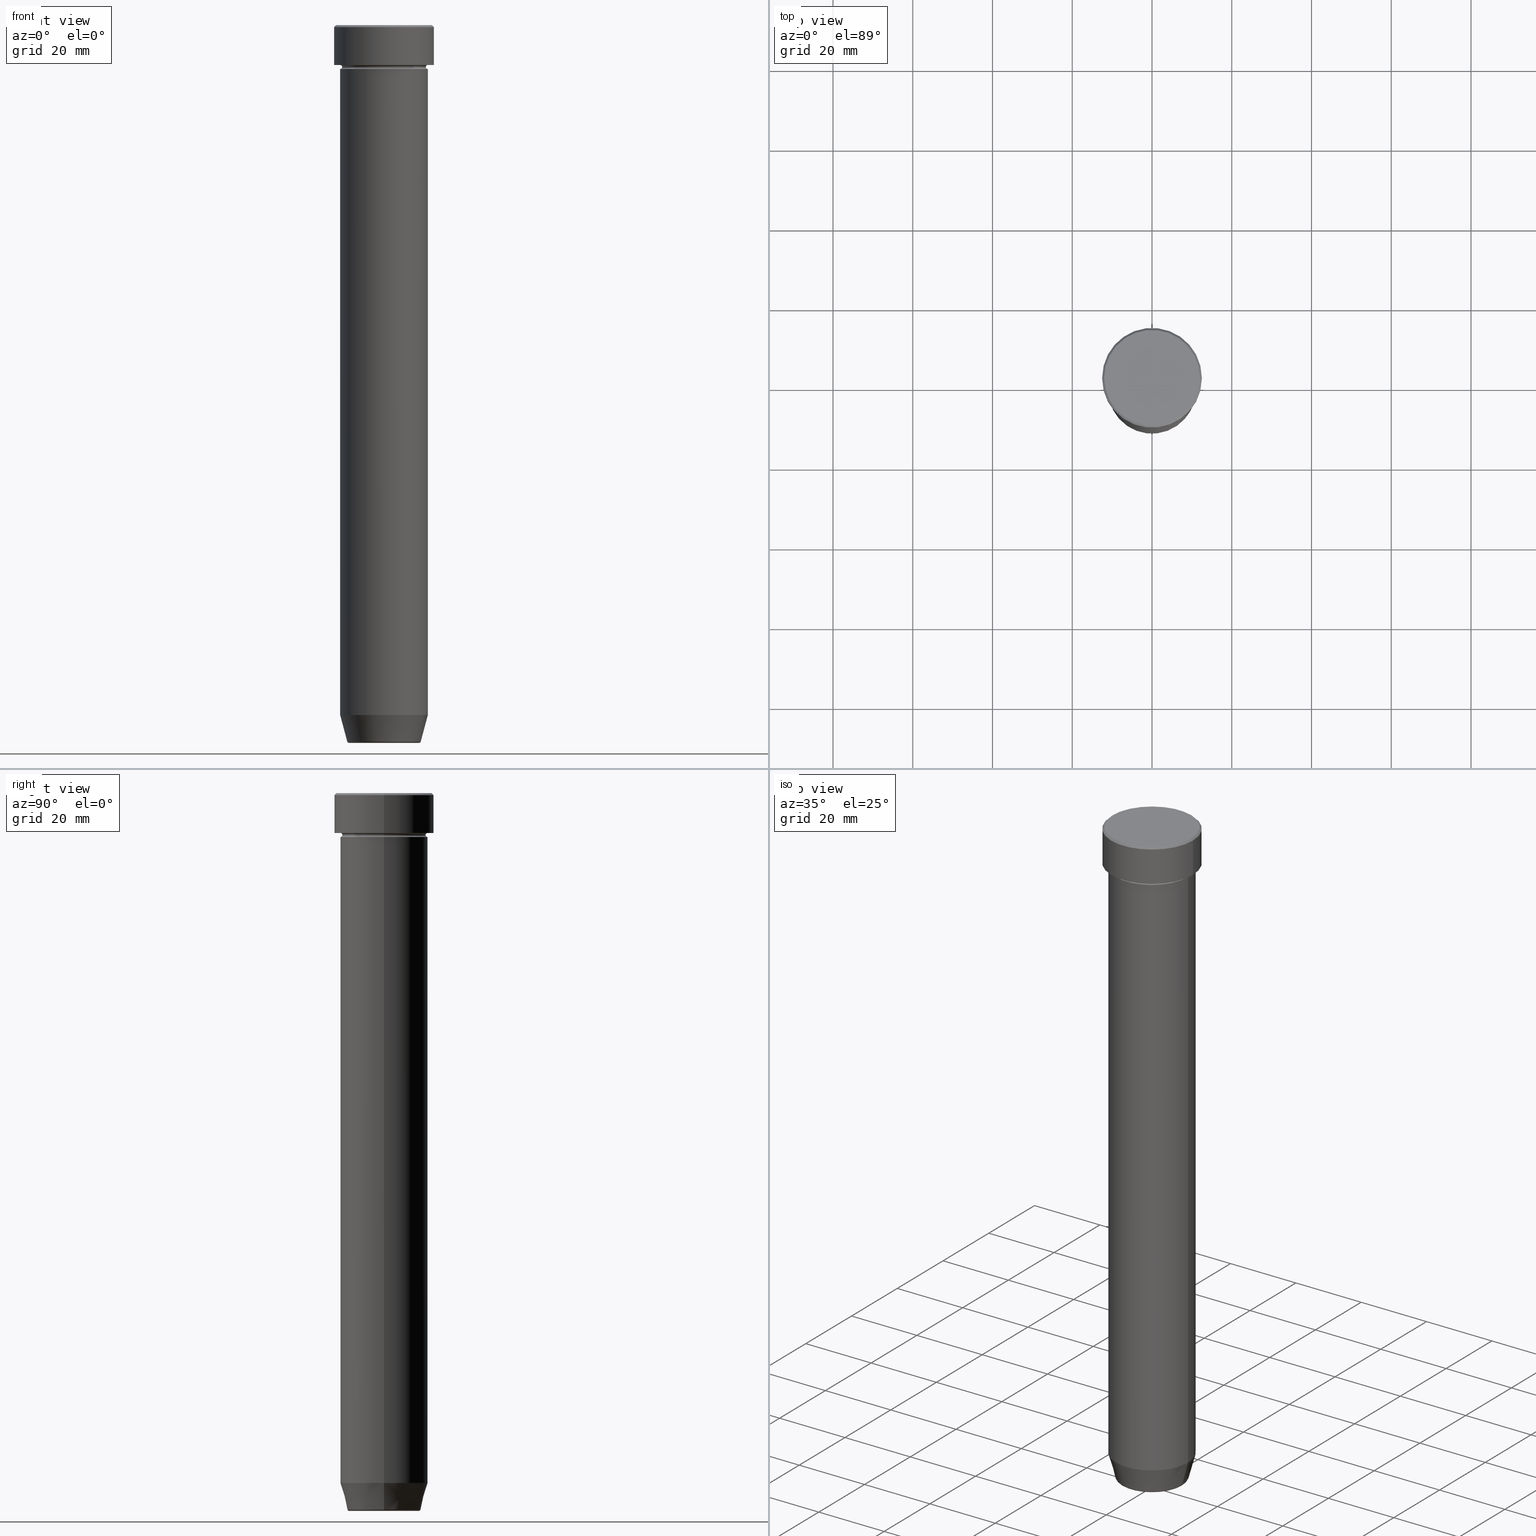
[diagram: canonical four-view strip — front | top / right | iso, engineering-drawing reading convention]
A machine part, canonical four-view strip (front | top / right | iso — engineering-drawing reading convention). The complete STEP part file that produces these views, byte-faithful:
ISO-10303-21;
HEADER;
FILE_DESCRIPTION (( 'STEP AP203' ),
    '1' );
FILE_NAME ('b06f.STEP',
    '2024-01-02T19:23:08',
    ( '' ),
    ( '' ),
    'SwSTEP 2.0',
    'SolidWorks 2019',
    '' );
FILE_SCHEMA (( 'CONFIG_CONTROL_DESIGN' ));
ENDSEC;

DATA;
#1 = PERSON_AND_ORGANIZATION ( #321, #514 ) ;
#2 = DIRECTION ( 'NONE',  ( 0.000000000000000000, 0.000000000000000000, -1.000000000000000000 ) ) ;
#3 = FACE_OUTER_BOUND ( 'NONE', #134, .T. ) ;
#4 = CIRCLE ( 'NONE', #425, 12.00000000000000355 ) ;
#5 = ADVANCED_FACE ( 'NONE', ( #315 ), #493, .F. ) ;
#6 = DATE_AND_TIME ( #129, #111 ) ;
#7 = CARTESIAN_POINT ( 'NONE',  ( 0.000000000000000000, 0.000000000000000000, -180.0000000000000000 ) ) ;
#8 = CARTESIAN_POINT ( 'NONE',  ( 0.000000000000000000, 0.000000000000000000, 0.000000000000000000 ) ) ;
#9 = VERTEX_POINT ( 'NONE', #85 ) ;
#10 = CARTESIAN_POINT ( 'NONE',  ( -10.49999999999999822, 1.316495309083404420E-15, -10.49999999999999822 ) ) ;
#11 = DATE_AND_TIME ( #136, #584 ) ;
#12 = ORIENTED_EDGE ( 'NONE', *, *, #58, .F. ) ;
#13 = AXIS2_PLACEMENT_3D ( 'NONE', #404, #166, #119 ) ;
#14 = DIRECTION ( 'NONE',  ( -0.000000000000000000, -0.000000000000000000, 1.000000000000000000 ) ) ;
#15 = CARTESIAN_POINT ( 'NONE',  ( 8.740692158992656502, 0.000000000000000000, -179.5000000000000000 ) ) ;
#16 = FACE_OUTER_BOUND ( 'NONE', #503, .T. ) ;
#17 = ORIENTED_EDGE ( 'NONE', *, *, #35, .T. ) ;
#18 = LINE ( 'NONE', #558, #231 ) ;
#19 = EDGE_CURVE ( 'NONE', #360, #376, #563, .T. ) ;
#20 = LINE ( 'NONE', #515, #250 ) ;
#21 = DIRECTION ( 'NONE',  ( 0.000000000000000000, 0.000000000000000000, -1.000000000000000000 ) ) ;
#22 = ORIENTED_EDGE ( 'NONE', *, *, #367, .T. ) ;
#23 = EDGE_CURVE ( 'NONE', #225, #527, #88, .T. ) ;
#24 = DIRECTION ( 'NONE',  ( -0.000000000000000000, -0.000000000000000000, 1.000000000000000000 ) ) ;
#25 = CIRCLE ( 'NONE', #389, 0.5000000000000004441 ) ;
#26 = CARTESIAN_POINT ( 'NONE',  ( 0.000000000000000000, 0.000000000000000000, 0.000000000000000000 ) ) ;
#27 = VERTEX_POINT ( 'NONE', #465 ) ;
#28 = PLANE ( 'NONE',  #505 ) ;
#29 = PERSON_AND_ORGANIZATION_ROLE ( 'design_owner' ) ;
#30 = ORIENTED_EDGE ( 'NONE', *, *, #280, .F. ) ;
#31 = AXIS2_PLACEMENT_3D ( 'NONE', #184, #284, #427 ) ;
#32 = ORIENTED_EDGE ( 'NONE', *, *, #437, .F. ) ;
#33 = ORIENTED_EDGE ( 'NONE', *, *, #525, .F. ) ;
#34 = AXIS2_PLACEMENT_3D ( 'NONE', #314, #477, #294 ) ;
#35 = EDGE_CURVE ( 'NONE', #559, #258, #102, .T. ) ;
#36 = CARTESIAN_POINT ( 'NONE',  ( 11.00000000000000000, 0.000000000000000000, -173.0000000000000000 ) ) ;
#37 = DIRECTION ( 'NONE',  ( -0.000000000000000000, -0.000000000000000000, 1.000000000000000000 ) ) ;
#38 = CARTESIAN_POINT ( 'NONE',  ( 0.000000000000000000, 0.000000000000000000, 0.000000000000000000 ) ) ;
#39 = AXIS2_PLACEMENT_3D ( 'NONE', #461, #107, #340 ) ;
#40 = CIRCLE ( 'NONE', #13, 8.740692158992656502 ) ;
#41 = ADVANCED_FACE ( 'NONE', ( #422 ), #28, .T. ) ;
#42 = DIRECTION ( 'NONE',  ( 0.7071067811865462405, 8.659560562354918067E-17, -0.7071067811865489050 ) ) ;
#43 = DIRECTION ( 'NONE',  ( 1.000000000000000000, 0.000000000000000000, 0.000000000000000000 ) ) ;
#44 = FACE_OUTER_BOUND ( 'NONE', #89, .T. ) ;
#45 = CARTESIAN_POINT ( 'NONE',  ( 0.000000000000000000, 12.50000000000000000, -10.00000000000000000 ) ) ;
#46 = ORIENTED_EDGE ( 'NONE', *, *, #486, .F. ) ;
#47 = DIRECTION ( 'NONE',  ( 1.000000000000000000, 0.000000000000000000, 0.000000000000000000 ) ) ;
#48 = DIRECTION ( 'NONE',  ( 1.000000000000000000, 0.000000000000000000, 0.000000000000000000 ) ) ;
#49 = EDGE_CURVE ( 'NONE', #93, #286, #20, .T. ) ;
#50 = VECTOR ( 'NONE', #98, 1000.000000000000000 ) ;
#51 = CALENDAR_DATE ( 2024, 2, 1 ) ;
#52 = EDGE_LOOP ( 'NONE', ( #32, #60 ) ) ;
#53 = DIRECTION ( 'NONE',  ( 0.000000000000000000, -0.000000000000000000, 1.000000000000000000 ) ) ;
#54 = AXIS2_PLACEMENT_3D ( 'NONE', #551, #53, #230 ) ;
#55 = CARTESIAN_POINT ( 'NONE',  ( 0.000000000000000000, 0.000000000000000000, -0.4999999999999988343 ) ) ;
#56 = CARTESIAN_POINT ( 'NONE',  ( 11.00000000000000000, 0.000000000000000000, 0.000000000000000000 ) ) ;
#57 = EDGE_LOOP ( 'NONE', ( #532, #433, #145, #466 ) ) ;
#58 = EDGE_CURVE ( 'NONE', #282, #9, #588, .T. ) ;
#59 = DIRECTION ( 'NONE',  ( -0.7071067811865462405, 0.000000000000000000, -0.7071067811865489050 ) ) ;
#60 = ORIENTED_EDGE ( 'NONE', *, *, #158, .F. ) ;
#61 = DIRECTION ( 'NONE',  ( 1.000000000000000000, 0.000000000000000000, 0.000000000000000000 ) ) ;
#62 = VERTEX_POINT ( 'NONE', #159 ) ;
#63 = PRODUCT_DEFINITION_FORMATION_WITH_SPECIFIED_SOURCE ( 'LIBOVOLN�', '', #421, .NOT_KNOWN. ) ;
#64 = CARTESIAN_POINT ( 'NONE',  ( 0.000000000000000000, 0.000000000000000000, -11.00000000000000000 ) ) ;
#65 = EDGE_CURVE ( 'NONE', #27, #235, #236, .T. ) ;
#66 = AXIS2_PLACEMENT_3D ( 'NONE', #379, #153, #252 ) ;
#67 = FACE_OUTER_BOUND ( 'NONE', #386, .T. ) ;
#68 = FACE_OUTER_BOUND ( 'NONE', #337, .T. ) ;
#69 = DIRECTION ( 'NONE',  ( 1.000000000000000000, 0.000000000000000000, 0.000000000000000000 ) ) ;
#70 = ORIENTED_EDGE ( 'NONE', *, *, #356, .F. ) ;
#71 = VECTOR ( 'NONE', #547, 1000.000000000000000 ) ;
#72 = CC_DESIGN_APPROVAL ( #175, ( #585 ) ) ;
#73 = ORIENTED_EDGE ( 'NONE', *, *, #124, .F. ) ;
#74 = AXIS2_PLACEMENT_3D ( 'NONE', #38, #312, #176 ) ;
#75 = TOROIDAL_SURFACE ( 'NONE', #232, 11.00000000000000000, 0.5000000000000000000 ) ;
#76 = CALENDAR_DATE ( 2024, 2, 1 ) ;
#77 = DIRECTION ( 'NONE',  ( -0.000000000000000000, -0.000000000000000000, 1.000000000000000000 ) ) ;
#78 = AXIS2_PLACEMENT_3D ( 'NONE', #449, #289, #47 ) ;
#79 = ADVANCED_FACE ( 'NONE', ( #16 ), #590, .F. ) ;
#80 = EDGE_LOOP ( 'NONE', ( #516, #531 ) ) ;
#81 = DIRECTION ( 'NONE',  ( -1.000000000000000000, 0.000000000000000000, 0.000000000000000000 ) ) ;
#82 = DIRECTION ( 'NONE',  ( 0.000000000000000000, 0.000000000000000000, -1.000000000000000000 ) ) ;
#83 = DIRECTION ( 'NONE',  ( -1.000000000000000000, 1.224646799147353454E-16, 0.000000000000000000 ) ) ;
#84 = CARTESIAN_POINT ( 'NONE',  ( 0.000000000000000000, 0.000000000000000000, -180.0000000000000000 ) ) ;
#85 = CARTESIAN_POINT ( 'NONE',  ( 11.00000000000000000, 1.347111479062088405E-15, -10.00000000000000000 ) ) ;
#86 = CARTESIAN_POINT ( 'NONE',  ( -11.00000000000000000, 0.000000000000000000, -10.00000000000000000 ) ) ;
#87 = APPROVAL_PERSON_ORGANIZATION ( #215, #456, #174 ) ;
#88 = CIRCLE ( 'NONE', #78, 10.49999999999999822 ) ;
#89 = EDGE_LOOP ( 'NONE', ( #332, #335, #70, #106 ) ) ;
#90 = CARTESIAN_POINT ( 'NONE',  ( 0.000000000000000000, 0.000000000000000000, -0.4999999999999988343 ) ) ;
#91 = CYLINDRICAL_SURFACE ( 'NONE', #535, 12.50000000000000000 ) ;
#92 = CONICAL_SURFACE ( 'NONE', #553, 9.124355652982133691, 0.2617993877991500740 ) ;
#93 = VERTEX_POINT ( 'NONE', #113 ) ;
#94 = DIRECTION ( 'NONE',  ( 1.000000000000000000, 0.000000000000000000, 0.000000000000000000 ) ) ;
#95 = FACE_OUTER_BOUND ( 'NONE', #549, .T. ) ;
#96 = DIRECTION ( 'NONE',  ( -0.000000000000000000, -0.000000000000000000, 1.000000000000000000 ) ) ;
#97 = ORIENTED_EDGE ( 'NONE', *, *, #280, .T. ) ;
#98 = DIRECTION ( 'NONE',  ( -0.2588190451025213501, 3.169619151431772337E-17, 0.9659258262890680902 ) ) ;
#99 = ADVANCED_FACE ( 'NONE', ( #68 ), #242, .T. ) ;
#100 = DIRECTION ( 'NONE',  ( 1.000000000000000000, 0.000000000000000000, 0.000000000000000000 ) ) ;
#101 = ORIENTED_EDGE ( 'NONE', *, *, #221, .F. ) ;
#102 = CIRCLE ( 'NONE', #429, 8.740692158992656502 ) ;
#103 = DIRECTION ( 'NONE',  ( -0.000000000000000000, -0.000000000000000000, 1.000000000000000000 ) ) ;
#104 = CARTESIAN_POINT ( 'NONE',  ( 0.000000000000000000, 0.000000000000000000, -27.00000000000000000 ) ) ;
#105 = CC_DESIGN_PERSON_AND_ORGANIZATION_ASSIGNMENT ( #599, #550, ( #63 ) ) ;
#106 = ORIENTED_EDGE ( 'NONE', *, *, #398, .F. ) ;
#107 = DIRECTION ( 'NONE',  ( -1.224646799147353207E-16, 1.000000000000000000, 0.000000000000000000 ) ) ;
#108 = CIRCLE ( 'NONE', #183, 10.49999999999999822 ) ;
#109 = DIRECTION ( 'NONE',  ( 1.000000000000000000, 0.000000000000000000, 0.000000000000000000 ) ) ;
#110 = EDGE_CURVE ( 'NONE', #121, #170, #133, .T. ) ;
#111 = LOCAL_TIME ( 20, 23, 8.000000000000000000, #464 ) ;
#112 = APPLICATION_CONTEXT ( 'configuration controlled 3d designs of mechanical parts and assemblies' ) ;
#113 = CARTESIAN_POINT ( 'NONE',  ( -11.00000000000000000, 1.347111479062088405E-15, -27.00000000000000000 ) ) ;
#114 = APPROVAL_DATE_TIME ( #489, #504 ) ;
#115 = PERSON_AND_ORGANIZATION ( #321, #514 ) ;
#116 = ORIENTED_EDGE ( 'NONE', *, *, #19, .F. ) ;
#117 = ADVANCED_FACE ( 'NONE', ( #269, #95 ), #326, .T. ) ;
#118 =( GEOMETRIC_REPRESENTATION_CONTEXT ( 3 ) GLOBAL_UNCERTAINTY_ASSIGNED_CONTEXT ( ( #417 ) ) GLOBAL_UNIT_ASSIGNED_CONTEXT ( ( #251, #270, #255 ) ) REPRESENTATION_CONTEXT ( 'NONE', 'WORKASPACE' ) );
#119 = DIRECTION ( 'NONE',  ( 1.000000000000000000, 0.000000000000000000, 0.000000000000000000 ) ) ;
#120 = ORIENTED_EDGE ( 'NONE', *, *, #367, .F. ) ;
#121 = VERTEX_POINT ( 'NONE', #366 ) ;
#122 = CARTESIAN_POINT ( 'NONE',  ( 0.000000000000000000, 0.000000000000000000, -27.00000000000000000 ) ) ;
#123 = CALENDAR_DATE ( 2024, 2, 1 ) ;
#124 = EDGE_CURVE ( 'NONE', #376, #582, #470, .T. ) ;
#125 = CARTESIAN_POINT ( 'NONE',  ( -11.00000000000000000, 1.347111479062088405E-15, -10.49999999999999822 ) ) ;
#126 = MECHANICAL_CONTEXT ( 'NONE', #529, 'mechanical' ) ;
#127 = CARTESIAN_POINT ( 'NONE',  ( -11.00000000000000000, 1.347111479062088405E-15, -11.00000000000000000 ) ) ;
#128 = CC_DESIGN_DATE_AND_TIME_ASSIGNMENT ( #483, #442, ( #362 ) ) ;
#129 = CALENDAR_DATE ( 2024, 2, 1 ) ;
#130 = LINE ( 'NONE', #501, #229 ) ;
#131 = DIRECTION ( 'NONE',  ( 1.000000000000000000, 0.000000000000000000, 0.000000000000000000 ) ) ;
#132 = VECTOR ( 'NONE', #59, 999.9999999999998863 ) ;
#133 = CIRCLE ( 'NONE', #560, 9.223655072137189492 ) ;
#134 = EDGE_LOOP ( 'NONE', ( #370, #390, #238, #593 ) ) ;
#135 = CARTESIAN_POINT ( 'NONE',  ( -12.50000000000000000, 1.530808498934191521E-15, -0.4999999999999988343 ) ) ;
#136 = CALENDAR_DATE ( 2024, 2, 1 ) ;
#137 = CC_DESIGN_SECURITY_CLASSIFICATION ( #585, ( #63 ) ) ;
#138 = EDGE_CURVE ( 'NONE', #559, #121, #542, .T. ) ;
#139 = DIRECTION ( 'NONE',  ( -0.000000000000000000, -0.000000000000000000, 1.000000000000000000 ) ) ;
#140 = DIRECTION ( 'NONE',  ( 1.000000000000000000, 0.000000000000000000, 0.000000000000000000 ) ) ;
#141 = APPROVAL_DATE_TIME ( #276, #456 ) ;
#142 = DIRECTION ( 'NONE',  ( 1.000000000000000000, 0.000000000000000000, 0.000000000000000000 ) ) ;
#143 = AXIS2_PLACEMENT_3D ( 'NONE', #55, #455, #377 ) ;
#144 = AXIS2_PLACEMENT_3D ( 'NONE', #8, #495, #43 ) ;
#145 = ORIENTED_EDGE ( 'NONE', *, *, #398, .T. ) ;
#146 = DIRECTION ( 'NONE',  ( -0.000000000000000000, -0.000000000000000000, 1.000000000000000000 ) ) ;
#147 = EDGE_CURVE ( 'NONE', #360, #265, #485, .T. ) ;
#148 = DIRECTION ( 'NONE',  ( -0.000000000000000000, -0.000000000000000000, 1.000000000000000000 ) ) ;
#149 = EDGE_LOOP ( 'NONE', ( #523, #450, #519, #164 ) ) ;
#150 = CARTESIAN_POINT ( 'NONE',  ( 0.000000000000000000, 0.000000000000000000, -180.0000000000000000 ) ) ;
#151 = ORIENTED_EDGE ( 'NONE', *, *, #484, .T. ) ;
#152 = DIRECTION ( 'NONE',  ( -0.000000000000000000, -0.000000000000000000, 1.000000000000000000 ) ) ;
#153 = DIRECTION ( 'NONE',  ( -0.000000000000000000, -0.000000000000000000, 1.000000000000000000 ) ) ;
#154 = ORIENTED_EDGE ( 'NONE', *, *, #23, .T. ) ;
#155 = CLOSED_SHELL ( 'NONE', ( #266, #298, #536, #291, #185, #41, #248, #207, #117, #580, #79, #552, #473 ) ) ;
#156 = AXIS2_PLACEMENT_3D ( 'NONE', #524, #344, #205 ) ;
#157 = DIRECTION ( 'NONE',  ( -0.000000000000000000, -0.000000000000000000, 1.000000000000000000 ) ) ;
#158 = EDGE_CURVE ( 'NONE', #93, #432, #574, .T. ) ;
#159 = CARTESIAN_POINT ( 'NONE',  ( 12.50000000000000000, 0.000000000000000000, -0.4999999999999988343 ) ) ;
#160 = AXIS2_PLACEMENT_3D ( 'NONE', #257, #336, #100 ) ;
#161 = DIRECTION ( 'NONE',  ( 0.000000000000000000, -1.000000000000000000, 0.000000000000000000 ) ) ;
#162 = CIRCLE ( 'NONE', #308, 12.50000000000000000 ) ;
#163 = DIRECTION ( 'NONE',  ( -1.000000000000000000, 0.000000000000000000, 0.000000000000000000 ) ) ;
#164 = ORIENTED_EDGE ( 'NONE', *, *, #147, .F. ) ;
#165 = APPROVAL_ROLE ( '' ) ;
#166 = DIRECTION ( 'NONE',  ( 0.000000000000000000, 0.000000000000000000, -1.000000000000000000 ) ) ;
#167 = APPROVAL_STATUS ( 'not_yet_approved' ) ;
#168 = EDGE_CURVE ( 'NONE', #482, #286, #397, .T. ) ;
#169 = AXIS2_PLACEMENT_3D ( 'NONE', #219, #77, #48 ) ;
#170 = VERTEX_POINT ( 'NONE', #283 ) ;
#171 = CC_DESIGN_PERSON_AND_ORGANIZATION_ASSIGNMENT ( #363, #409, ( #63 ) ) ;
#172 = VERTEX_POINT ( 'NONE', #459 ) ;
#173 = DIRECTION ( 'NONE',  ( 1.000000000000000000, 0.000000000000000000, 0.000000000000000000 ) ) ;
#174 = APPROVAL_ROLE ( '' ) ;
#175 = APPROVAL ( #447, 'NEUR�EN�' ) ;
#176 = DIRECTION ( 'NONE',  ( 1.000000000000000000, 0.000000000000000000, 0.000000000000000000 ) ) ;
#177 = PERSON_AND_ORGANIZATION_ROLE ( 'creator' ) ;
#178 = PLANE ( 'NONE',  #54 ) ;
#179 = DIRECTION ( 'NONE',  ( -0.000000000000000000, -0.000000000000000000, 1.000000000000000000 ) ) ;
#180 = DIRECTION ( 'NONE',  ( 1.000000000000000000, 0.000000000000000000, 0.000000000000000000 ) ) ;
#181 = ADVANCED_FACE ( 'NONE', ( #226 ), #220, .T. ) ;
#182 = DIRECTION ( 'NONE',  ( -1.000000000000000000, 1.224646799147353454E-16, 0.000000000000000000 ) ) ;
#183 = AXIS2_PLACEMENT_3D ( 'NONE', #441, #395, #361 ) ;
#184 = CARTESIAN_POINT ( 'NONE',  ( 0.000000000000000000, 0.000000000000000000, 0.000000000000000000 ) ) ;
#185 = ADVANCED_FACE ( 'NONE', ( #3 ), #597, .T. ) ;
#186 = CARTESIAN_POINT ( 'NONE',  ( 0.000000000000000000, 0.000000000000000000, -10.49999999999999822 ) ) ;
#187 = AXIS2_PLACEMENT_3D ( 'NONE', #423, #103, #142 ) ;
#188 = AXIS2_PLACEMENT_3D ( 'NONE', #45, #334, #320 ) ;
#189 = DIRECTION ( 'NONE',  ( 1.000000000000000000, 0.000000000000000000, 0.000000000000000000 ) ) ;
#190 = ORIENTED_EDGE ( 'NONE', *, *, #110, .T. ) ;
#191 = ORIENTED_EDGE ( 'NONE', *, *, #408, .F. ) ;
#192 = ORIENTED_EDGE ( 'NONE', *, *, #23, .F. ) ;
#193 = FACE_OUTER_BOUND ( 'NONE', #587, .T. ) ;
#194 = DIRECTION ( 'NONE',  ( -0.000000000000000000, -0.000000000000000000, 1.000000000000000000 ) ) ;
#195 = CARTESIAN_POINT ( 'NONE',  ( 0.000000000000000000, 11.00000000000000000, -27.00000000000000000 ) ) ;
#196 = VECTOR ( 'NONE', #96, 1000.000000000000000 ) ;
#197 = LINE ( 'NONE', #467, #537 ) ;
#198 = ORIENTED_EDGE ( 'NONE', *, *, #212, .T. ) ;
#199 = CARTESIAN_POINT ( 'NONE',  ( 0.000000000000000000, 0.000000000000000000, -10.00000000000000000 ) ) ;
#200 = ORIENTED_EDGE ( 'NONE', *, *, #221, .T. ) ;
#201 = AXIS2_PLACEMENT_3D ( 'NONE', #506, #277, #365 ) ;
#202 = AXIS2_PLACEMENT_3D ( 'NONE', #381, #21, #383 ) ;
#203 = CARTESIAN_POINT ( 'NONE',  ( 0.000000000000000000, 0.000000000000000000, 0.000000000000000000 ) ) ;
#204 = ORIENTED_EDGE ( 'NONE', *, *, #346, .F. ) ;
#205 = DIRECTION ( 'NONE',  ( 1.000000000000000000, 0.000000000000000000, 0.000000000000000000 ) ) ;
#206 = CARTESIAN_POINT ( 'NONE',  ( 8.740692158992656502, 0.000000000000000000, -180.0000000000000000 ) ) ;
#207 = ADVANCED_FACE ( 'NONE', ( #325 ), #91, .T. ) ;
#208 = CIRCLE ( 'NONE', #305, 11.00000000000000000 ) ;
#209 = AXIS2_PLACEMENT_3D ( 'NONE', #104, #194, #293 ) ;
#210 = CC_DESIGN_DATE_AND_TIME_ASSIGNMENT ( #6, #318, ( #585 ) ) ;
#211 = EDGE_LOOP ( 'NONE', ( #97, #375, #12, #101 ) ) ;
#212 = EDGE_CURVE ( 'NONE', #258, #559, #40, .T. ) ;
#213 = DIRECTION ( 'NONE',  ( 1.000000000000000000, 0.000000000000000000, 0.000000000000000000 ) ) ;
#214 = CC_DESIGN_PERSON_AND_ORGANIZATION_ASSIGNMENT ( #115, #177, ( #362 ) ) ;
#215 = PERSON_AND_ORGANIZATION ( #321, #514 ) ;
#216 = AXIS2_PLACEMENT_3D ( 'NONE', #292, #161, #279 ) ;
#217 = DIRECTION ( 'NONE',  ( 1.224646799147353207E-16, 1.000000000000000000, 0.000000000000000000 ) ) ;
#218 = DIRECTION ( 'NONE',  ( 0.000000000000000000, 0.000000000000000000, 1.000000000000000000 ) ) ;
#219 = CARTESIAN_POINT ( 'NONE',  ( 0.000000000000000000, 0.000000000000000000, -179.5000000000000000 ) ) ;
#220 = CYLINDRICAL_SURFACE ( 'NONE', #299, 11.00000000000000000 ) ;
#221 = EDGE_CURVE ( 'NONE', #527, #282, #25, .T. ) ;
#222 = CYLINDRICAL_SURFACE ( 'NONE', #343, 11.00000000000000000 ) ;
#223 = CARTESIAN_POINT ( 'NONE',  ( 0.000000000000000000, 0.000000000000000000, 0.000000000000000000 ) ) ;
#224 = APPROVAL_DATE_TIME ( #11, #175 ) ;
#225 = VERTEX_POINT ( 'NONE', #369 ) ;
#226 = FACE_OUTER_BOUND ( 'NONE', #479, .T. ) ;
#227 = CARTESIAN_POINT ( 'NONE',  ( 0.000000000000000000, 0.000000000000000000, 0.000000000000000000 ) ) ;
#228 = APPROVAL_ROLE ( '' ) ;
#229 = VECTOR ( 'NONE', #42, 999.9999999999998863 ) ;
#230 = DIRECTION ( 'NONE',  ( 1.000000000000000000, 0.000000000000000000, 0.000000000000000000 ) ) ;
#231 = VECTOR ( 'NONE', #146, 1000.000000000000000 ) ;
#232 = AXIS2_PLACEMENT_3D ( 'NONE', #316, #444, #490 ) ;
#233 = EDGE_CURVE ( 'NONE', #27, #62, #130, .T. ) ;
#234 = LINE ( 'NONE', #415, #50 ) ;
#235 = VERTEX_POINT ( 'NONE', #443 ) ;
#236 = CIRCLE ( 'NONE', #156, 12.00000000000000355 ) ;
#237 = PERSON_AND_ORGANIZATION ( #321, #514 ) ;
#238 = ORIENTED_EDGE ( 'NONE', *, *, #356, .T. ) ;
#239 = ORIENTED_EDGE ( 'NONE', *, *, #35, .F. ) ;
#240 = LINE ( 'NONE', #56, #445 ) ;
#241 = ORIENTED_EDGE ( 'NONE', *, *, #498, .F. ) ;
#242 = TOROIDAL_SURFACE ( 'NONE', #160, 8.740692158992656502, 0.5000000000000000000 ) ;
#243 = CARTESIAN_POINT ( 'NONE',  ( 0.000000000000000000, 0.000000000000000000, -27.00000000000000000 ) ) ;
#244 = AXIS2_PLACEMENT_3D ( 'NONE', #26, #345, #109 ) ;
#245 = EDGE_LOOP ( 'NONE', ( #17, #198 ) ) ;
#246 = CIRCLE ( 'NONE', #487, 0.5000000000000004441 ) ;
#247 = LINE ( 'NONE', #513, #469 ) ;
#248 = ADVANCED_FACE ( 'NONE', ( #554 ), #403, .T. ) ;
#249 = DIRECTION ( 'NONE',  ( 1.000000000000000000, 0.000000000000000000, 0.000000000000000000 ) ) ;
#250 = VECTOR ( 'NONE', #287, 1000.000000000000000 ) ;
#251 =( LENGTH_UNIT ( ) NAMED_UNIT ( * ) SI_UNIT ( .MILLI., .METRE. ) );
#252 = DIRECTION ( 'NONE',  ( 1.000000000000000000, 0.000000000000000000, 0.000000000000000000 ) ) ;
#253 = ORIENTED_EDGE ( 'NONE', *, *, #428, .T. ) ;
#254 = CARTESIAN_POINT ( 'NONE',  ( 0.000000000000000000, 0.000000000000000000, -179.6294095225512422 ) ) ;
#255 =( NAMED_UNIT ( * ) SI_UNIT ( $, .STERADIAN. ) SOLID_ANGLE_UNIT ( ) );
#256 = EDGE_CURVE ( 'NONE', #582, #376, #577, .T. ) ;
#257 = CARTESIAN_POINT ( 'NONE',  ( 0.000000000000000000, 0.000000000000000000, -179.5000000000000000 ) ) ;
#258 = VERTEX_POINT ( 'NONE', #275 ) ;
#259 = AXIS2_PLACEMENT_3D ( 'NONE', #199, #37, #81 ) ;
#260 = ORIENTED_EDGE ( 'NONE', *, *, #408, .T. ) ;
#261 = CC_DESIGN_PERSON_AND_ORGANIZATION_ASSIGNMENT ( #237, #331, ( #585 ) ) ;
#262 = VERTEX_POINT ( 'NONE', #135 ) ;
#263 = ORIENTED_EDGE ( 'NONE', *, *, #168, .T. ) ;
#264 = EDGE_LOOP ( 'NONE', ( #190, #414, #555, #488 ) ) ;
#265 = VERTEX_POINT ( 'NONE', #36 ) ;
#266 = ADVANCED_FACE ( 'NONE', ( #44 ), #435, .T. ) ;
#267 = APPLICATION_PROTOCOL_DEFINITION ( 'international standard', 'config_control_design', 1994, #112 ) ;
#268 = DIRECTION ( 'NONE',  ( -0.000000000000000000, -0.000000000000000000, 1.000000000000000000 ) ) ;
#269 = FACE_BOUND ( 'NONE', #436, .T. ) ;
#270 =( NAMED_UNIT ( * ) PLANE_ANGLE_UNIT ( ) SI_UNIT ( $, .RADIAN. ) );
#271 = CIRCLE ( 'NONE', #216, 0.5000000000000004441 ) ;
#272 = DIRECTION ( 'NONE',  ( -0.000000000000000000, -0.000000000000000000, 1.000000000000000000 ) ) ;
#273 = DIRECTION ( 'NONE',  ( -0.000000000000000000, -0.000000000000000000, 1.000000000000000000 ) ) ;
#274 = ADVANCED_FACE ( 'NONE', ( #319 ), #546, .T. ) ;
#275 = CARTESIAN_POINT ( 'NONE',  ( -8.740692158992656502, 1.099999016768739653E-15, -180.0000000000000000 ) ) ;
#276 = DATE_AND_TIME ( #51, #394 ) ;
#277 = DIRECTION ( 'NONE',  ( -0.000000000000000000, -0.000000000000000000, 1.000000000000000000 ) ) ;
#278 = CARTESIAN_POINT ( 'NONE',  ( 0.000000000000000000, 0.000000000000000000, -27.00000000000000000 ) ) ;
#279 = DIRECTION ( 'NONE',  ( 0.000000000000000000, 0.000000000000000000, -1.000000000000000000 ) ) ;
#280 = EDGE_CURVE ( 'NONE', #527, #225, #108, .T. ) ;
#281 = DIRECTION ( 'NONE',  ( -0.000000000000000000, -1.000000000000000000, -0.000000000000000000 ) ) ;
#282 = VERTEX_POINT ( 'NONE', #86 ) ;
#283 = CARTESIAN_POINT ( 'NONE',  ( -9.223655072137189492, 1.238341722557647202E-15, -179.6294095225512422 ) ) ;
#284 = DIRECTION ( 'NONE',  ( 0.000000000000000000, 0.000000000000000000, -1.000000000000000000 ) ) ;
#285 = DIRECTION ( 'NONE',  ( 0.000000000000000000, 0.000000000000000000, -1.000000000000000000 ) ) ;
#286 = VERTEX_POINT ( 'NONE', #127 ) ;
#287 = DIRECTION ( 'NONE',  ( -0.000000000000000000, -0.000000000000000000, 1.000000000000000000 ) ) ;
#288 = ORIENTED_EDGE ( 'NONE', *, *, #317, .F. ) ;
#289 = DIRECTION ( 'NONE',  ( -0.000000000000000000, -0.000000000000000000, 1.000000000000000000 ) ) ;
#290 = DIRECTION ( 'NONE',  ( -0.000000000000000000, -0.000000000000000000, 1.000000000000000000 ) ) ;
#291 = ADVANCED_FACE ( 'NONE', ( #589 ), #222, .T. ) ;
#292 = CARTESIAN_POINT ( 'NONE',  ( 11.00000000000000000, 0.000000000000000000, -10.49999999999999822 ) ) ;
#293 = DIRECTION ( 'NONE',  ( 1.000000000000000000, 0.000000000000000000, 0.000000000000000000 ) ) ;
#294 = DIRECTION ( 'NONE',  ( 1.000000000000000000, 0.000000000000000000, 0.000000000000000000 ) ) ;
#295 = LOCAL_TIME ( 20, 23, 8.000000000000000000, #300 ) ;
#296 = CARTESIAN_POINT ( 'NONE',  ( 0.000000000000000000, 0.000000000000000000, -10.49999999999999822 ) ) ;
#297 = DIRECTION ( 'NONE',  ( -1.000000000000000000, 0.000000000000000000, 0.000000000000000000 ) ) ;
#298 = ADVANCED_FACE ( 'NONE', ( #548 ), #75, .F. ) ;
#299 = AXIS2_PLACEMENT_3D ( 'NONE', #223, #273, #140 ) ;
#300 = COORDINATED_UNIVERSAL_TIME_OFFSET ( 1, 0, .AHEAD. ) ;
#301 = EDGE_LOOP ( 'NONE', ( #491, #520, #438, #392 ) ) ;
#302 = AXIS2_PLACEMENT_3D ( 'NONE', #203, #218, #69 ) ;
#303 = ORIENTED_EDGE ( 'NONE', *, *, #19, .T. ) ;
#304 = CLOSED_SHELL ( 'NONE', ( #350, #274, #557, #5, #181, #463, #378, #99 ) ) ;
#305 = AXIS2_PLACEMENT_3D ( 'NONE', #243, #341, #522 ) ;
#306 = DIRECTION ( 'NONE',  ( -1.000000000000000000, 0.000000000000000000, -0.000000000000000000 ) ) ;
#307 = ORIENTED_EDGE ( 'NONE', *, *, #124, .T. ) ;
#308 = AXIS2_PLACEMENT_3D ( 'NONE', #90, #2, #173 ) ;
#309 = CYLINDRICAL_SURFACE ( 'NONE', #244, 11.00000000000000000 ) ;
#310 = TOROIDAL_SURFACE ( 'NONE', #202, 11.00000000000000000, 0.5000000000000000000 ) ;
#311 = AXIS2_PLACEMENT_3D ( 'NONE', #353, #217, #182 ) ;
#312 = DIRECTION ( 'NONE',  ( 0.000000000000000000, -0.000000000000000000, 1.000000000000000000 ) ) ;
#313 = AXIS2_PLACEMENT_3D ( 'NONE', #328, #157, #94 ) ;
#314 = CARTESIAN_POINT ( 'NONE',  ( 0.000000000000000000, 0.000000000000000000, 0.000000000000000000 ) ) ;
#315 = FACE_OUTER_BOUND ( 'NONE', #352, .T. ) ;
#316 = CARTESIAN_POINT ( 'NONE',  ( 0.000000000000000000, 0.000000000000000000, -10.50000000000000000 ) ) ;
#317 = EDGE_CURVE ( 'NONE', #258, #170, #499, .T. ) ;
#318 = DATE_TIME_ROLE ( 'classification_date' ) ;
#319 = FACE_OUTER_BOUND ( 'NONE', #264, .T. ) ;
#320 = DIRECTION ( 'NONE',  ( -1.000000000000000000, 0.000000000000000000, -0.000000000000000000 ) ) ;
#321 = PERSON ( 'NEUR�EN�', 'NEUR�EN�', 'NEUR�EN�', ('NEUR�EN�'), ('NEUR�EN�'), ('NEUR�EN�') ) ;
#322 = CARTESIAN_POINT ( 'NONE',  ( 0.000000000000000000, 0.000000000000000000, -27.00000000000000000 ) ) ;
#323 = CC_DESIGN_PERSON_AND_ORGANIZATION_ASSIGNMENT ( #387, #29, ( #421 ) ) ;
#324 = DIRECTION ( 'NONE',  ( 0.000000000000000000, 0.000000000000000000, -1.000000000000000000 ) ) ;
#325 = FACE_OUTER_BOUND ( 'NONE', #567, .T. ) ;
#326 = PLANE ( 'NONE',  #188 ) ;
#327 = ORIENTED_EDGE ( 'NONE', *, *, #595, .F. ) ;
#328 = CARTESIAN_POINT ( 'NONE',  ( 0.000000000000000000, 0.000000000000000000, -173.0000000000000000 ) ) ;
#329 = AXIS2_PLACEMENT_3D ( 'NONE', #15, #528, #285 ) ;
#330 = AXIS2_PLACEMENT_3D ( 'NONE', #296, #148, #476 ) ;
#331 = PERSON_AND_ORGANIZATION_ROLE ( 'classification_officer' ) ;
#332 = ORIENTED_EDGE ( 'NONE', *, *, #65, .F. ) ;
#333 = CARTESIAN_POINT ( 'NONE',  ( -12.00000000000000355, 0.000000000000000000, 0.000000000000000000 ) ) ;
#334 = DIRECTION ( 'NONE',  ( 0.000000000000000000, 0.000000000000000000, -1.000000000000000000 ) ) ;
#335 = ORIENTED_EDGE ( 'NONE', *, *, #233, .T. ) ;
#336 = DIRECTION ( 'NONE',  ( -0.000000000000000000, -0.000000000000000000, 1.000000000000000000 ) ) ;
#337 = EDGE_LOOP ( 'NONE', ( #288, #239, #576, #448 ) ) ;
#338 = FACE_OUTER_BOUND ( 'NONE', #354, .T. ) ;
#339 = EDGE_CURVE ( 'NONE', #235, #27, #4, .T. ) ;
#340 = DIRECTION ( 'NONE',  ( -1.000000000000000000, -1.224646799147353454E-16, 0.000000000000000000 ) ) ;
#341 = DIRECTION ( 'NONE',  ( -0.000000000000000000, -0.000000000000000000, 1.000000000000000000 ) ) ;
#342 = CIRCLE ( 'NONE', #201, 12.50000000000000000 ) ;
#343 = AXIS2_PLACEMENT_3D ( 'NONE', #399, #139, #213 ) ;
#344 = DIRECTION ( 'NONE',  ( -0.000000000000000000, -0.000000000000000000, 1.000000000000000000 ) ) ;
#345 = DIRECTION ( 'NONE',  ( -0.000000000000000000, -0.000000000000000000, 1.000000000000000000 ) ) ;
#346 = EDGE_CURVE ( 'NONE', #172, #512, #342, .T. ) ;
#347 = APPROVAL_PERSON_ORGANIZATION ( #400, #504, #165 ) ;
#348 = ORIENTED_EDGE ( 'NONE', *, *, #147, .T. ) ;
#349 = ADVANCED_BREP_SHAPE_REPRESENTATION ( 'b06f', ( #480, #481, #302 ), #118 ) ;
#350 = ADVANCED_FACE ( 'NONE', ( #592 ), #410, .T. ) ;
#351 = AXIS2_PLACEMENT_3D ( 'NONE', #122, #82, #306 ) ;
#352 = EDGE_LOOP ( 'NONE', ( #420, #307 ) ) ;
#353 = CARTESIAN_POINT ( 'NONE',  ( -8.740692158992656502, 1.070426067484272519E-15, -179.5000000000000000 ) ) ;
#354 = EDGE_LOOP ( 'NONE', ( #241, #154, #200, #538 ) ) ;
#355 = COORDINATED_UNIVERSAL_TIME_OFFSET ( 1, 0, .AHEAD. ) ;
#356 = EDGE_CURVE ( 'NONE', #262, #62, #162, .T. ) ;
#357 = DIRECTION ( 'NONE',  ( 1.000000000000000000, 0.000000000000000000, 0.000000000000000000 ) ) ;
#358 = DIRECTION ( 'NONE',  ( 0.000000000000000000, 0.000000000000000000, -1.000000000000000000 ) ) ;
#359 = ORIENTED_EDGE ( 'NONE', *, *, #437, .T. ) ;
#360 = VERTEX_POINT ( 'NONE', #545 ) ;
#361 = DIRECTION ( 'NONE',  ( 1.000000000000000000, 0.000000000000000000, 0.000000000000000000 ) ) ;
#362 = PRODUCT_DEFINITION ( 'NEZN�M�', '', #63, #569 ) ;
#363 = PERSON_AND_ORGANIZATION ( #321, #514 ) ;
#364 = CIRCLE ( 'NONE', #521, 11.00000000000000000 ) ;
#365 = DIRECTION ( 'NONE',  ( 1.000000000000000000, 0.000000000000000000, 0.000000000000000000 ) ) ;
#366 = CARTESIAN_POINT ( 'NONE',  ( 9.223655072137189492, 0.000000000000000000, -179.6294095225512422 ) ) ;
#367 = EDGE_CURVE ( 'NONE', #527, #286, #246, .T. ) ;
#368 = EDGE_LOOP ( 'NONE', ( #359, #578, #570, #380 ) ) ;
#369 = CARTESIAN_POINT ( 'NONE',  ( 10.49999999999999822, 0.000000000000000000, -10.49999999999999822 ) ) ;
#370 = ORIENTED_EDGE ( 'NONE', *, *, #346, .T. ) ;
#371 = CARTESIAN_POINT ( 'NONE',  ( 0.000000000000000000, 0.000000000000000000, -11.00000000000000000 ) ) ;
#372 = ORIENTED_EDGE ( 'NONE', *, *, #158, .T. ) ;
#373 = CIRCLE ( 'NONE', #143, 12.50000000000000000 ) ;
#374 = DIRECTION ( 'NONE',  ( 0.2588190451025213501, 0.000000000000000000, 0.9659258262890680902 ) ) ;
#375 = ORIENTED_EDGE ( 'NONE', *, *, #498, .T. ) ;
#376 = VERTEX_POINT ( 'NONE', #401 ) ;
#377 = DIRECTION ( 'NONE',  ( 1.000000000000000000, 0.000000000000000000, 0.000000000000000000 ) ) ;
#378 = ADVANCED_FACE ( 'NONE', ( #596 ), #178, .F. ) ;
#379 = CARTESIAN_POINT ( 'NONE',  ( 0.000000000000000000, 0.000000000000000000, -173.0000000000000000 ) ) ;
#380 = ORIENTED_EDGE ( 'NONE', *, *, #511, .F. ) ;
#381 = CARTESIAN_POINT ( 'NONE',  ( 0.000000000000000000, 0.000000000000000000, -10.50000000000000000 ) ) ;
#382 = CARTESIAN_POINT ( 'NONE',  ( 0.000000000000000000, 0.000000000000000000, -10.00000000000000000 ) ) ;
#383 = DIRECTION ( 'NONE',  ( -1.000000000000000000, 0.000000000000000000, 0.000000000000000000 ) ) ;
#384 = DIRECTION ( 'NONE',  ( -0.000000000000000000, -0.000000000000000000, 1.000000000000000000 ) ) ;
#385 = EDGE_CURVE ( 'NONE', #265, #360, #413, .T. ) ;
#386 = EDGE_LOOP ( 'NONE', ( #430, #372, #518, #46 ) ) ;
#387 = PERSON_AND_ORGANIZATION ( #321, #514 ) ;
#388 = AXIS2_PLACEMENT_3D ( 'NONE', #452, #324, #446 ) ;
#389 = AXIS2_PLACEMENT_3D ( 'NONE', #533, #281, #358 ) ;
#390 = ORIENTED_EDGE ( 'NONE', *, *, #595, .T. ) ;
#391 = DIRECTION ( 'NONE',  ( -0.000000000000000000, -0.000000000000000000, 1.000000000000000000 ) ) ;
#392 = ORIENTED_EDGE ( 'NONE', *, *, #138, .F. ) ;
#393 = AXIS2_PLACEMENT_3D ( 'NONE', #492, #391, #297 ) ;
#394 = LOCAL_TIME ( 20, 23, 8.000000000000000000, #355 ) ;
#395 = DIRECTION ( 'NONE',  ( -0.000000000000000000, -0.000000000000000000, 1.000000000000000000 ) ) ;
#396 = CYLINDRICAL_SURFACE ( 'NONE', #34, 11.00000000000000000 ) ;
#397 = CIRCLE ( 'NONE', #478, 11.00000000000000000 ) ;
#398 = EDGE_CURVE ( 'NONE', #235, #262, #419, .T. ) ;
#399 = CARTESIAN_POINT ( 'NONE',  ( 0.000000000000000000, 0.000000000000000000, 0.000000000000000000 ) ) ;
#400 = PERSON_AND_ORGANIZATION ( #321, #514 ) ;
#401 = CARTESIAN_POINT ( 'NONE',  ( -11.00000000000000000, 1.347111479062088405E-15, -27.00000000000000000 ) ) ;
#402 = CARTESIAN_POINT ( 'NONE',  ( 0.000000000000000000, 0.000000000000000000, 0.000000000000000000 ) ) ;
#403 = PLANE ( 'NONE',  #74 ) ;
#404 = CARTESIAN_POINT ( 'NONE',  ( 0.000000000000000000, 0.000000000000000000, -180.0000000000000000 ) ) ;
#405 = DIRECTION ( 'NONE',  ( -0.000000000000000000, -0.000000000000000000, 1.000000000000000000 ) ) ;
#406 = DIRECTION ( 'NONE',  ( 1.000000000000000000, 0.000000000000000000, 0.000000000000000000 ) ) ;
#407 = DIRECTION ( 'NONE',  ( 0.000000000000000000, 0.000000000000000000, -1.000000000000000000 ) ) ;
#408 = EDGE_CURVE ( 'NONE', #225, #482, #271, .T. ) ;
#409 = PERSON_AND_ORGANIZATION_ROLE ( 'design_supplier' ) ;
#410 = TOROIDAL_SURFACE ( 'NONE', #169, 8.740692158992656502, 0.5000000000000000000 ) ;
#411 = CARTESIAN_POINT ( 'NONE',  ( 11.00000000000000000, 0.000000000000000000, -27.00000000000000000 ) ) ;
#412 = AXIS2_PLACEMENT_3D ( 'NONE', #322, #268, #357 ) ;
#413 = CIRCLE ( 'NONE', #313, 11.00000000000000000 ) ;
#414 = ORIENTED_EDGE ( 'NONE', *, *, #451, .T. ) ;
#415 = CARTESIAN_POINT ( 'NONE',  ( -9.124355652982133691, 1.117411294470662806E-15, -180.0000000000000000 ) ) ;
#416 = AXIS2_PLACEMENT_3D ( 'NONE', #382, #572, #163 ) ;
#417 = UNCERTAINTY_MEASURE_WITH_UNIT (LENGTH_MEASURE( 1.000000000000000082E-05 ), #251, 'distance_accuracy_value', 'NONE');
#418 = EDGE_CURVE ( 'NONE', #121, #265, #247, .T. ) ;
#419 = LINE ( 'NONE', #333, #132 ) ;
#420 = ORIENTED_EDGE ( 'NONE', *, *, #256, .T. ) ;
#421 = PRODUCT ( 'b06f', 'b06f', '', ( #126 ) ) ;
#422 = FACE_OUTER_BOUND ( 'NONE', #52, .T. ) ;
#423 = CARTESIAN_POINT ( 'NONE',  ( 0.000000000000000000, 0.000000000000000000, -10.00000000000000000 ) ) ;
#424 = CIRCLE ( 'NONE', #259, 11.00000000000000000 ) ;
#425 = AXIS2_PLACEMENT_3D ( 'NONE', #227, #272, #180 ) ;
#426 = DIRECTION ( 'NONE',  ( -1.000000000000000000, 0.000000000000000000, -0.000000000000000000 ) ) ;
#427 = DIRECTION ( 'NONE',  ( -1.000000000000000000, 0.000000000000000000, 0.000000000000000000 ) ) ;
#428 = EDGE_CURVE ( 'NONE', #62, #262, #373, .T. ) ;
#429 = AXIS2_PLACEMENT_3D ( 'NONE', #150, #407, #249 ) ;
#430 = ORIENTED_EDGE ( 'NONE', *, *, #49, .F. ) ;
#431 = CIRCLE ( 'NONE', #39, 0.5000000000000004441 ) ;
#432 = VERTEX_POINT ( 'NONE', #411 ) ;
#433 = ORIENTED_EDGE ( 'NONE', *, *, #339, .F. ) ;
#434 = LINE ( 'NONE', #581, #71 ) ;
#435 = CONICAL_SURFACE ( 'NONE', #388, 12.00000000000000355, 0.7853981633974465026 ) ;
#436 = EDGE_LOOP ( 'NONE', ( #562, #468 ) ) ;
#437 = EDGE_CURVE ( 'NONE', #432, #93, #208, .T. ) ;
#438 = ORIENTED_EDGE ( 'NONE', *, *, #110, .F. ) ;
#439 = PRODUCT_RELATED_PRODUCT_CATEGORY ( 'detail', '', ( #421 ) ) ;
#440 = AXIS2_PLACEMENT_3D ( 'NONE', #84, #405, #496 ) ;
#441 = CARTESIAN_POINT ( 'NONE',  ( 0.000000000000000000, 0.000000000000000000, -10.49999999999999822 ) ) ;
#442 = DATE_TIME_ROLE ( 'creation_date' ) ;
#443 = CARTESIAN_POINT ( 'NONE',  ( -12.00000000000000355, 0.000000000000000000, 0.000000000000000000 ) ) ;
#444 = DIRECTION ( 'NONE',  ( 0.000000000000000000, 0.000000000000000000, -1.000000000000000000 ) ) ;
#445 = VECTOR ( 'NONE', #152, 1000.000000000000000 ) ;
#446 = DIRECTION ( 'NONE',  ( -1.000000000000000000, 0.000000000000000000, 0.000000000000000000 ) ) ;
#447 = APPROVAL_STATUS ( 'not_yet_approved' ) ;
#448 = ORIENTED_EDGE ( 'NONE', *, *, #583, .F. ) ;
#449 = CARTESIAN_POINT ( 'NONE',  ( 0.000000000000000000, 0.000000000000000000, -10.49999999999999822 ) ) ;
#450 = ORIENTED_EDGE ( 'NONE', *, *, #583, .T. ) ;
#451 = EDGE_CURVE ( 'NONE', #170, #360, #234, .T. ) ;
#452 = CARTESIAN_POINT ( 'NONE',  ( 0.000000000000000000, 0.000000000000000000, 0.000000000000000000 ) ) ;
#453 = SHAPE_DEFINITION_REPRESENTATION ( #541, #349 ) ;
#454 = AXIS2_PLACEMENT_3D ( 'NONE', #278, #462, #406 ) ;
#455 = DIRECTION ( 'NONE',  ( 0.000000000000000000, 0.000000000000000000, -1.000000000000000000 ) ) ;
#456 = APPROVAL ( #591, 'NEUR�EN�' ) ;
#457 = ORIENTED_EDGE ( 'NONE', *, *, #484, .F. ) ;
#458 = EDGE_LOOP ( 'NONE', ( #30, #22, #586, #191 ) ) ;
#459 = CARTESIAN_POINT ( 'NONE',  ( 12.50000000000000000, 0.000000000000000000, -10.00000000000000000 ) ) ;
#460 = AXIS2_PLACEMENT_3D ( 'NONE', #186, #14, #189 ) ;
#461 = CARTESIAN_POINT ( 'NONE',  ( 11.00000000000000000, 1.347111479062088405E-15, -10.50000000000000000 ) ) ;
#462 = DIRECTION ( 'NONE',  ( -0.000000000000000000, -0.000000000000000000, 1.000000000000000000 ) ) ;
#463 = ADVANCED_FACE ( 'NONE', ( #517 ), #92, .T. ) ;
#464 = COORDINATED_UNIVERSAL_TIME_OFFSET ( 1, 0, .AHEAD. ) ;
#465 = CARTESIAN_POINT ( 'NONE',  ( 12.00000000000000355, 1.500192328955507734E-15, 0.000000000000000000 ) ) ;
#466 = ORIENTED_EDGE ( 'NONE', *, *, #428, .F. ) ;
#467 = CARTESIAN_POINT ( 'NONE',  ( 12.50000000000000000, 0.000000000000000000, 0.000000000000000000 ) ) ;
#468 = ORIENTED_EDGE ( 'NONE', *, *, #571, .T. ) ;
#469 = VECTOR ( 'NONE', #374, 1000.000000000000000 ) ;
#470 = CIRCLE ( 'NONE', #454, 11.00000000000000000 ) ;
#471 = DIRECTION ( 'NONE',  ( -1.000000000000000000, 0.000000000000000000, 0.000000000000000000 ) ) ;
#472 = DIRECTION ( 'NONE',  ( -0.000000000000000000, -0.000000000000000000, 1.000000000000000000 ) ) ;
#473 = ADVANCED_FACE ( 'NONE', ( #565 ), #508, .T. ) ;
#474 = DIRECTION ( 'NONE',  ( 1.000000000000000000, 0.000000000000000000, 0.000000000000000000 ) ) ;
#475 = ORIENTED_EDGE ( 'NONE', *, *, #525, .T. ) ;
#476 = DIRECTION ( 'NONE',  ( 1.000000000000000000, 0.000000000000000000, 0.000000000000000000 ) ) ;
#477 = DIRECTION ( 'NONE',  ( -0.000000000000000000, -0.000000000000000000, 1.000000000000000000 ) ) ;
#478 = AXIS2_PLACEMENT_3D ( 'NONE', #64, #384, #474 ) ;
#479 = EDGE_LOOP ( 'NONE', ( #116, #348, #475, #73 ) ) ;
#480 = MANIFOLD_SOLID_BREP ( 'Zkosen�1', #155 ) ;
#481 = MANIFOLD_SOLID_BREP ( 'Zaoblit4', #304 ) ;
#482 = VERTEX_POINT ( 'NONE', #526 ) ;
#483 = DATE_AND_TIME ( #76, #295 ) ;
#484 = EDGE_CURVE ( 'NONE', #512, #172, #540, .T. ) ;
#485 = CIRCLE ( 'NONE', #66, 11.00000000000000000 ) ;
#486 = EDGE_CURVE ( 'NONE', #286, #482, #364, .T. ) ;
#487 = AXIS2_PLACEMENT_3D ( 'NONE', #125, #494, #83 ) ;
#488 = ORIENTED_EDGE ( 'NONE', *, *, #418, .F. ) ;
#489 = DATE_AND_TIME ( #123, #530 ) ;
#490 = DIRECTION ( 'NONE',  ( -1.000000000000000000, 0.000000000000000000, 0.000000000000000000 ) ) ;
#491 = ORIENTED_EDGE ( 'NONE', *, *, #212, .F. ) ;
#492 = CARTESIAN_POINT ( 'NONE',  ( 0.000000000000000000, 0.000000000000000000, -179.6294095225512422 ) ) ;
#493 = PLANE ( 'NONE',  #351 ) ;
#494 = DIRECTION ( 'NONE',  ( 1.224646799147353207E-16, 1.000000000000000000, 0.000000000000000000 ) ) ;
#495 = DIRECTION ( 'NONE',  ( -0.000000000000000000, -0.000000000000000000, 1.000000000000000000 ) ) ;
#496 = DIRECTION ( 'NONE',  ( 1.000000000000000000, 0.000000000000000000, 0.000000000000000000 ) ) ;
#497 = CIRCLE ( 'NONE', #393, 9.223655072137189492 ) ;
#498 = EDGE_CURVE ( 'NONE', #225, #9, #431, .T. ) ;
#499 = CIRCLE ( 'NONE', #311, 0.5000000000000004441 ) ;
#500 = APPROVAL_PERSON_ORGANIZATION ( #1, #175, #228 ) ;
#501 = CARTESIAN_POINT ( 'NONE',  ( 12.00000000000000355, 1.469576158976824342E-15, 0.000000000000000000 ) ) ;
#502 = SECURITY_CLASSIFICATION_LEVEL ( 'unclassified' ) ;
#503 = EDGE_LOOP ( 'NONE', ( #120, #192, #260, #263 ) ) ;
#504 = APPROVAL ( #167, 'NEUR�EN�' ) ;
#505 = AXIS2_PLACEMENT_3D ( 'NONE', #195, #575, #426 ) ;
#506 = CARTESIAN_POINT ( 'NONE',  ( 0.000000000000000000, 0.000000000000000000, -10.00000000000000000 ) ) ;
#507 = COORDINATED_UNIVERSAL_TIME_OFFSET ( 1, 0, .AHEAD. ) ;
#508 = CONICAL_SURFACE ( 'NONE', #31, 12.00000000000000355, 0.7853981633974465026 ) ;
#509 = ORIENTED_EDGE ( 'NONE', *, *, #539, .T. ) ;
#510 = DIRECTION ( 'NONE',  ( 1.000000000000000000, 0.000000000000000000, 0.000000000000000000 ) ) ;
#511 = EDGE_CURVE ( 'NONE', #432, #482, #240, .T. ) ;
#512 = VERTEX_POINT ( 'NONE', #561 ) ;
#513 = CARTESIAN_POINT ( 'NONE',  ( 9.124355652982133691, 0.000000000000000000, -180.0000000000000000 ) ) ;
#514 = ORGANIZATION ( 'NEUR�EN�', 'NEUR�EN�', '' ) ;
#515 = CARTESIAN_POINT ( 'NONE',  ( -11.00000000000000000, 1.347111479062088405E-15, 0.000000000000000000 ) ) ;
#516 = ORIENTED_EDGE ( 'NONE', *, *, #339, .T. ) ;
#517 = FACE_OUTER_BOUND ( 'NONE', #149, .T. ) ;
#518 = ORIENTED_EDGE ( 'NONE', *, *, #511, .T. ) ;
#519 = ORIENTED_EDGE ( 'NONE', *, *, #418, .T. ) ;
#520 = ORIENTED_EDGE ( 'NONE', *, *, #317, .T. ) ;
#521 = AXIS2_PLACEMENT_3D ( 'NONE', #371, #290, #61 ) ;
#522 = DIRECTION ( 'NONE',  ( 1.000000000000000000, 0.000000000000000000, 0.000000000000000000 ) ) ;
#523 = ORIENTED_EDGE ( 'NONE', *, *, #451, .F. ) ;
#524 = CARTESIAN_POINT ( 'NONE',  ( 0.000000000000000000, 0.000000000000000000, 0.000000000000000000 ) ) ;
#525 = EDGE_CURVE ( 'NONE', #265, #582, #18, .T. ) ;
#526 = CARTESIAN_POINT ( 'NONE',  ( 11.00000000000000000, 0.000000000000000000, -11.00000000000000000 ) ) ;
#527 = VERTEX_POINT ( 'NONE', #10 ) ;
#528 = DIRECTION ( 'NONE',  ( 0.000000000000000000, -1.000000000000000000, 0.000000000000000000 ) ) ;
#529 = APPLICATION_CONTEXT ( 'configuration controlled 3d designs of mechanical parts and assemblies' ) ;
#530 = LOCAL_TIME ( 20, 23, 8.000000000000000000, #544 ) ;
#531 = ORIENTED_EDGE ( 'NONE', *, *, #65, .T. ) ;
#532 = ORIENTED_EDGE ( 'NONE', *, *, #233, .F. ) ;
#533 = CARTESIAN_POINT ( 'NONE',  ( -11.00000000000000000, 0.000000000000000000, -10.50000000000000000 ) ) ;
#534 = CARTESIAN_POINT ( 'NONE',  ( 11.00000000000000000, 0.000000000000000000, -27.00000000000000000 ) ) ;
#535 = AXIS2_PLACEMENT_3D ( 'NONE', #402, #179, #131 ) ;
#536 = ADVANCED_FACE ( 'NONE', ( #568 ), #564, .F. ) ;
#537 = VECTOR ( 'NONE', #573, 1000.000000000000000 ) ;
#538 = ORIENTED_EDGE ( 'NONE', *, *, #571, .F. ) ;
#539 = EDGE_CURVE ( 'NONE', #172, #62, #197, .T. ) ;
#540 = CIRCLE ( 'NONE', #187, 12.50000000000000000 ) ;
#541 = PRODUCT_DEFINITION_SHAPE ( 'NONE', 'NONE',  #362 ) ;
#542 = CIRCLE ( 'NONE', #329, 0.5000000000000004441 ) ;
#543 = ORIENTED_EDGE ( 'NONE', *, *, #256, .F. ) ;
#544 = COORDINATED_UNIVERSAL_TIME_OFFSET ( 1, 0, .AHEAD. ) ;
#545 = CARTESIAN_POINT ( 'NONE',  ( -11.00000000000000000, 1.347111479062088405E-15, -173.0000000000000000 ) ) ;
#546 = CONICAL_SURFACE ( 'NONE', #440, 9.124355652982133691, 0.2617993877991500740 ) ;
#547 = DIRECTION ( 'NONE',  ( -0.000000000000000000, -0.000000000000000000, 1.000000000000000000 ) ) ;
#548 = FACE_OUTER_BOUND ( 'NONE', #211, .T. ) ;
#549 = EDGE_LOOP ( 'NONE', ( #204, #457 ) ) ;
#550 = PERSON_AND_ORGANIZATION_ROLE ( 'creator' ) ;
#551 = CARTESIAN_POINT ( 'NONE',  ( 0.000000000000000000, 1.592040838891559450E-14, -180.0000000000000000 ) ) ;
#552 = ADVANCED_FACE ( 'NONE', ( #338 ), #310, .F. ) ;
#553 = AXIS2_PLACEMENT_3D ( 'NONE', #7, #472, #510 ) ;
#554 = FACE_OUTER_BOUND ( 'NONE', #80, .T. ) ;
#555 = ORIENTED_EDGE ( 'NONE', *, *, #385, .F. ) ;
#556 = CARTESIAN_POINT ( 'NONE',  ( -11.00000000000000000, 1.347111479062088405E-15, 0.000000000000000000 ) ) ;
#557 = ADVANCED_FACE ( 'NONE', ( #193 ), #309, .T. ) ;
#558 = CARTESIAN_POINT ( 'NONE',  ( 11.00000000000000000, 0.000000000000000000, 0.000000000000000000 ) ) ;
#559 = VERTEX_POINT ( 'NONE', #206 ) ;
#560 = AXIS2_PLACEMENT_3D ( 'NONE', #254, #24, #471 ) ;
#561 = CARTESIAN_POINT ( 'NONE',  ( -12.50000000000000000, 1.530808498934191521E-15, -10.00000000000000000 ) ) ;
#562 = ORIENTED_EDGE ( 'NONE', *, *, #58, .T. ) ;
#563 = LINE ( 'NONE', #556, #196 ) ;
#564 = TOROIDAL_SURFACE ( 'NONE', #460, 11.00000000000000000, 0.5000000000000000000 ) ;
#565 = FACE_OUTER_BOUND ( 'NONE', #57, .T. ) ;
#566 = CC_DESIGN_APPROVAL ( #504, ( #362 ) ) ;
#567 = EDGE_LOOP ( 'NONE', ( #327, #151, #509, #253 ) ) ;
#568 = FACE_OUTER_BOUND ( 'NONE', #458, .T. ) ;
#569 = DESIGN_CONTEXT ( 'detailed design', #112, 'design' ) ;
#570 = ORIENTED_EDGE ( 'NONE', *, *, #168, .F. ) ;
#571 = EDGE_CURVE ( 'NONE', #9, #282, #424, .T. ) ;
#572 = DIRECTION ( 'NONE',  ( -0.000000000000000000, -0.000000000000000000, 1.000000000000000000 ) ) ;
#573 = DIRECTION ( 'NONE',  ( -0.000000000000000000, -0.000000000000000000, 1.000000000000000000 ) ) ;
#574 = CIRCLE ( 'NONE', #209, 11.00000000000000000 ) ;
#575 = DIRECTION ( 'NONE',  ( 0.000000000000000000, 0.000000000000000000, -1.000000000000000000 ) ) ;
#576 = ORIENTED_EDGE ( 'NONE', *, *, #138, .T. ) ;
#577 = CIRCLE ( 'NONE', #412, 11.00000000000000000 ) ;
#578 = ORIENTED_EDGE ( 'NONE', *, *, #49, .T. ) ;
#579 = APPLICATION_PROTOCOL_DEFINITION ( 'international standard', 'config_control_design', 1994, #529 ) ;
#580 = ADVANCED_FACE ( 'NONE', ( #67 ), #396, .T. ) ;
#581 = CARTESIAN_POINT ( 'NONE',  ( -12.50000000000000000, 1.530808498934191521E-15, 0.000000000000000000 ) ) ;
#582 = VERTEX_POINT ( 'NONE', #534 ) ;
#583 = EDGE_CURVE ( 'NONE', #170, #121, #497, .T. ) ;
#584 = LOCAL_TIME ( 20, 23, 8.000000000000000000, #507 ) ;
#585 = SECURITY_CLASSIFICATION ( '', '', #502 ) ;
#586 = ORIENTED_EDGE ( 'NONE', *, *, #486, .T. ) ;
#587 = EDGE_LOOP ( 'NONE', ( #594, #303, #543, #33 ) ) ;
#588 = CIRCLE ( 'NONE', #416, 11.00000000000000000 ) ;
#589 = FACE_OUTER_BOUND ( 'NONE', #368, .T. ) ;
#590 = TOROIDAL_SURFACE ( 'NONE', #330, 11.00000000000000000, 0.5000000000000000000 ) ;
#591 = APPROVAL_STATUS ( 'not_yet_approved' ) ;
#592 = FACE_OUTER_BOUND ( 'NONE', #301, .T. ) ;
#593 = ORIENTED_EDGE ( 'NONE', *, *, #539, .F. ) ;
#594 = ORIENTED_EDGE ( 'NONE', *, *, #385, .T. ) ;
#595 = EDGE_CURVE ( 'NONE', #512, #262, #434, .T. ) ;
#596 = FACE_OUTER_BOUND ( 'NONE', #245, .T. ) ;
#597 = CYLINDRICAL_SURFACE ( 'NONE', #144, 12.50000000000000000 ) ;
#598 = CC_DESIGN_APPROVAL ( #456, ( #63 ) ) ;
#599 = PERSON_AND_ORGANIZATION ( #321, #514 ) ;
ENDSEC;
END-ISO-10303-21;
